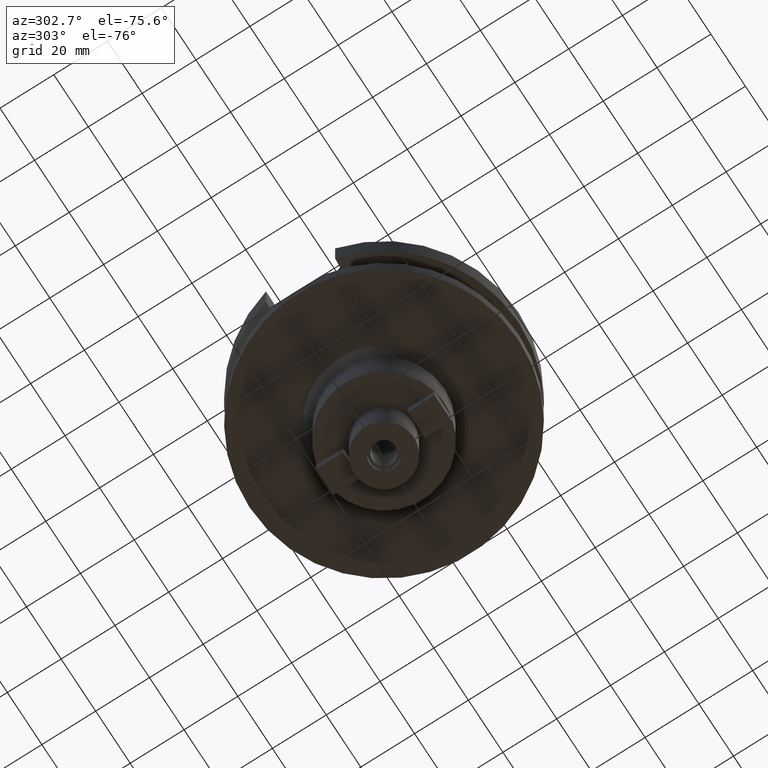
[diagram: clean part render]
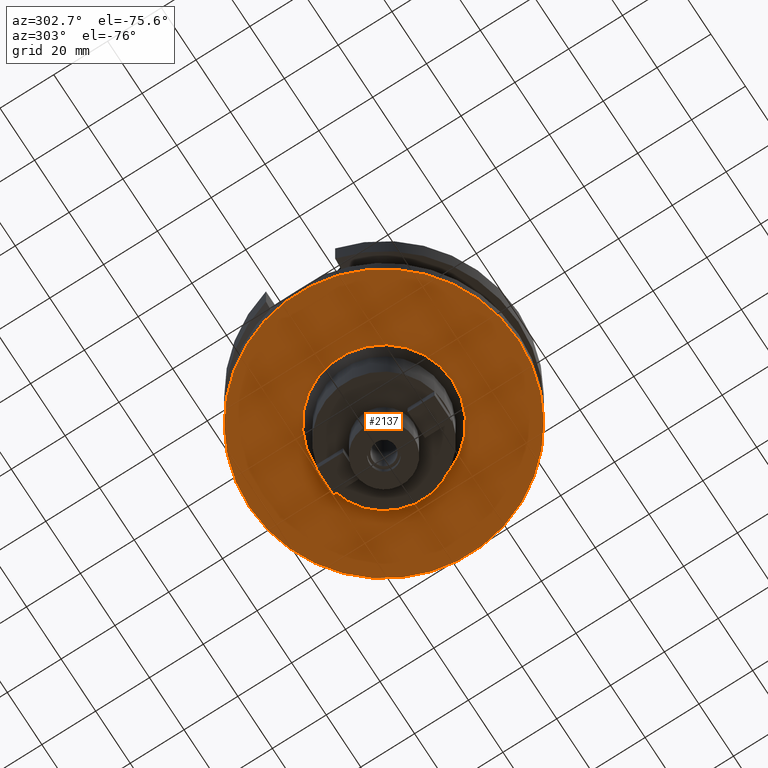
[diagram: same view with one face highlighted and labeled with its STEP entity id]
A machine part, auxiliary view. The second image highlights one B-rep face of the part: STEP entity #2137.
In plain terms, the highlighted planar face has unit normal (0, 0, -1).
Its self-contained STEP definition (entity closure, byte-faithful):
#628=CARTESIAN_POINT('',(0.E0,2.581432987923E-14,-3.8E1));
#629=DIRECTION('',(0.E0,0.E0,1.E0));
#630=DIRECTION('',(0.E0,-1.E0,0.E0));
#631=AXIS2_PLACEMENT_3D('',#628,#629,#630);
#636=CARTESIAN_POINT('',(0.E0,2.581432987923E-14,-3.8E1));
#637=DIRECTION('',(0.E0,0.E0,1.E0));
#638=DIRECTION('',(0.E0,1.E0,0.E0));
#639=AXIS2_PLACEMENT_3D('',#636,#637,#638);
#644=CARTESIAN_POINT('',(0.E0,0.E0,-3.8E1));
#645=DIRECTION('',(0.E0,0.E0,-1.E0));
#646=DIRECTION('',(0.E0,-1.E0,0.E0));
#647=AXIS2_PLACEMENT_3D('',#644,#645,#646);
#652=CARTESIAN_POINT('',(0.E0,0.E0,-3.8E1));
#653=DIRECTION('',(0.E0,0.E0,-1.E0));
#654=DIRECTION('',(0.E0,1.E0,0.E0));
#655=AXIS2_PLACEMENT_3D('',#652,#653,#654);
#1434=CARTESIAN_POINT('',(0.E0,2.55E1,-3.8E1));
#1435=VERTEX_POINT('',#1434);
#1436=CARTESIAN_POINT('',(0.E0,-2.55E1,-3.8E1));
#1437=VERTEX_POINT('',#1436);
#1438=CARTESIAN_POINT('',(0.E0,-5.E1,-3.8E1));
#1439=CARTESIAN_POINT('',(0.E0,5.E1,-3.8E1));
#1440=VERTEX_POINT('',#1438);
#1441=VERTEX_POINT('',#1439);
#2122=CARTESIAN_POINT('',(0.E0,0.E0,-3.8E1));
#2123=DIRECTION('',(0.E0,0.E0,-1.E0));
#2124=DIRECTION('',(0.E0,-1.E0,0.E0));
#2125=AXIS2_PLACEMENT_3D('',#2122,#2123,#2124);
#2126=PLANE('',#2125);
#2128=ORIENTED_EDGE('',*,*,#2127,.T.);
#2130=ORIENTED_EDGE('',*,*,#2129,.T.);
#2131=EDGE_LOOP('',(#2128,#2130));
#2132=FACE_OUTER_BOUND('',#2131,.F.);
#2133=ORIENTED_EDGE('',*,*,#2115,.T.);
#2134=ORIENTED_EDGE('',*,*,#2104,.T.);
#2135=EDGE_LOOP('',(#2133,#2134));
#2136=FACE_BOUND('',#2135,.F.);
#632=CIRCLE('',#631,5.E1);
#640=CIRCLE('',#639,5.E1);
#648=CIRCLE('',#647,2.55E1);
#656=CIRCLE('',#655,2.55E1);
#2104=EDGE_CURVE('',#1435,#1437,#656,.T.);
#2115=EDGE_CURVE('',#1437,#1435,#648,.T.);
#2127=EDGE_CURVE('',#1440,#1441,#632,.T.);
#2129=EDGE_CURVE('',#1441,#1440,#640,.T.);
#2137=ADVANCED_FACE('',(#2132,#2136),#2126,.T.);